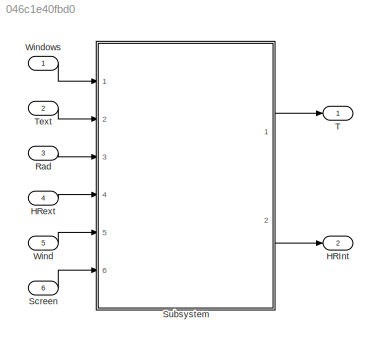
MODEL slx_046c1e40fbd0
KIND model
CONFIG AbsTol = auto
CONFIG EnableMultiTasking = off
CONFIG FixedStep = auto
CONFIG MaxStep = auto
CONFIG MinStep = auto
CONFIG RelTol = 1e-3
CONFIG SampleTimeConstraint = Unconstrained
CONFIG SolverName = VariableStepAuto
CONFIG StartTime = 0.0
CONFIG StopTime = 8
WORKSPACE source: mxarray member
WORKSPACE params: climate_p (value not decoded)
BLOCK [Outport] HRInt
  Port = 2
BLOCK [Inport] HRext
  Port = 4
BLOCK [Inport] Rad
  Port = 3
BLOCK [Inport] Screen
  Port = 6
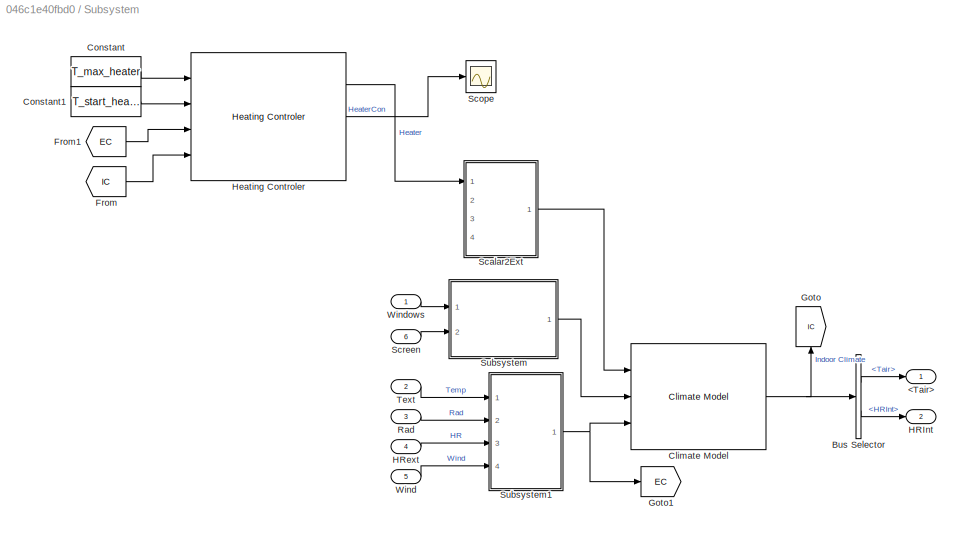
BLOCK [SubSystem] Subsystem
  Ports = [6, 2]
  RequestExecContextInheritance = off
BLOCK [Outport] Subsystem/<Tair>
BLOCK [BusSelector] Subsystem/Bus Selector
  OutputSignals = Temp.Tair,Gas.HRInt
  Ports = [1, 2]
BLOCK [Reference] Subsystem/Climate Model  REF=HORTISIM/Climate/Models/Climate Model
  Ports = [3, 1]
  SourceBlock = HORTISIM/Climate/Models/Climate Model
  SourceProductName = Horti Simulator
BLOCK [Constant] Subsystem/Constant
  Value = T_max_heater
BLOCK [Constant] Subsystem/Constant1
  Value = T_start_heater
BLOCK [From] Subsystem/From
  GotoTag = IC
BLOCK [From] Subsystem/From1
  GotoTag = EC
BLOCK [Goto] Subsystem/Goto
  GotoTag = IC
  NameLocation = right
BLOCK [Goto] Subsystem/Goto1
  GotoTag = EC
BLOCK [Outport] Subsystem/HRInt
  Port = 2
BLOCK [Inport] Subsystem/HRext
  Port = 4
BLOCK [Reference] Subsystem/Heating Controler  REF=HORTISIM/Climate/Controls/Heating Controler
  NameLocation = top
  Ports = [4, 3]
  SourceBlock = HORTISIM/Climate/Controls/Heating Controler
  SourceProductName = Horti Simulator
BLOCK [Inport] Subsystem/Rad
  Port = 3
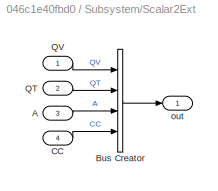
BLOCK [SubSystem] Subsystem/Scalar2Ext
  Ports = [4, 1]
  RequestExecContextInheritance = off
BLOCK [Inport] Subsystem/Scalar2Ext/A
  Port = 3
BLOCK [BusCreator] Subsystem/Scalar2Ext/Bus Creator
  DisplayOption = bar
  InheritFromInputs = on
  Inputs = 4
  Ports = [4, 1]
BLOCK [Inport] Subsystem/Scalar2Ext/CC
  Port = 4
BLOCK [Inport] Subsystem/Scalar2Ext/QT
  Port = 2
BLOCK [Inport] Subsystem/Scalar2Ext/QV
BLOCK [Outport] Subsystem/Scalar2Ext/out
BLOCK [Scope] Subsystem/Scope
  Floating = off
  NumInputPorts = 1
  Ports = [1]
  ScopeSpecificationString = Simulink.scopes.TimeScopeBlockCfg('CurrentConfiguration', extmgr.ConfigurationSet(extmgr.Configuration('Core','General UI',true),extmgr.Configuration('Core','Source UI',true),extmgr.Configuration('Sources','WiredSimulink',true),extmgr.Configuration('Visuals','Time Domain',true,'SerializedDisplays',{struct('MinYLimReal','-125000.00000','MaxYLimReal','1125000.00000','YLabelReal','','MinYLimMag','   ...<+1426ch>
BLOCK [Inport] Subsystem/Screen
  Port = 6
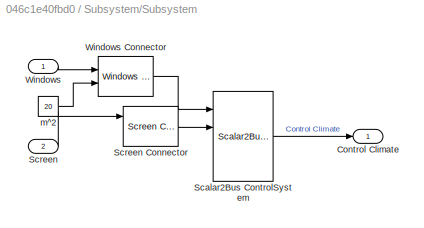
BLOCK [SubSystem] Subsystem/Subsystem
  Ports = [2, 1]
  RequestExecContextInheritance = off
BLOCK [Outport] Subsystem/Subsystem/Control Climate
BLOCK [Reference] Subsystem/Subsystem/Scalar2Bus ControlSystem  REF=HORTISIM/Other 
Functions/Scalar2Bus 
ControlSystem
  Ports = [4, 1]
  SourceBlock = HORTISIM/Other \nFunctions/Scalar2Bus \nControlSystem
  SourceProductName = Horti Simulator
  SourceType = SubSystem
BLOCK [Inport] Subsystem/Subsystem/Screen
  Port = 2
BLOCK [Reference] Subsystem/Subsystem/Screen Connector  REF=HORTISIM/Other 
Functions/Screen
Connector
  Ports = [3, 1]
  SourceBlock = HORTISIM/Other \nFunctions/Screen\nConnector
  SourceProductName = Horti Simulator
  SourceType = SubSystem
BLOCK [Inport] Subsystem/Subsystem/Windows
BLOCK [Reference] Subsystem/Subsystem/Windows Connector  REF=HORTISIM/Other 
Functions/Windows
Connector
  Ports = [2, 1]
  SourceBlock = HORTISIM/Other \nFunctions/Windows\nConnector
  SourceProductName = Horti Simulator
  SourceType = SubSystem
BLOCK [Constant] Subsystem/Subsystem/m^2
  Value = 20
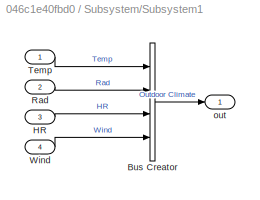
BLOCK [SubSystem] Subsystem/Subsystem1
  Ports = [4, 1]
  RequestExecContextInheritance = off
BLOCK [BusCreator] Subsystem/Subsystem1/Bus Creator
  DisplayOption = bar
  InheritFromInputs = on
  Inputs = 4
  Ports = [4, 1]
BLOCK [Inport] Subsystem/Subsystem1/HR
  Port = 3
BLOCK [Inport] Subsystem/Subsystem1/Rad
  Port = 2
BLOCK [Inport] Subsystem/Subsystem1/Temp
BLOCK [Inport] Subsystem/Subsystem1/Wind
  Port = 4
BLOCK [Outport] Subsystem/Subsystem1/out
BLOCK [Inport] Subsystem/Text
  Port = 2
BLOCK [Inport] Subsystem/Wind
  Port = 5
BLOCK [Inport] Subsystem/Windows
BLOCK [Outport] T
BLOCK [Inport] Text
  Port = 2
BLOCK [Inport] Wind
  Port = 5
BLOCK [Inport] Windows
LINE HRext:1 -> Subsystem:4
LINE Rad:1 -> Subsystem:3
LINE Screen:1 -> Subsystem:6
LINE Subsystem/Bus Selector:1 -> Subsystem/<Tair>:1
LINE Subsystem/Bus Selector:2 -> Subsystem/HRInt:1
NET Subsystem/Climate Model:1 -> Subsystem/Bus Selector:1, Subsystem/Goto:1
LINE Subsystem/Constant1:1 -> Subsystem/Heating Controler:2
LINE Subsystem/Constant:1 -> Subsystem/Heating Controler:1
LINE Subsystem/From1:1 -> Subsystem/Heating Controler:3
LINE Subsystem/From:1 -> Subsystem/Heating Controler:4
LINE Subsystem/HRext:1 -> Subsystem/Subsystem1:3
LINE Subsystem/Heating Controler:1 -> Subsystem/Scalar2Ext:1
LINE Subsystem/Heating Controler:2 -> Subsystem/Scope:1
LINE Subsystem/Rad:1 -> Subsystem/Subsystem1:2
LINE Subsystem/Scalar2Ext/A:1 -> Subsystem/Scalar2Ext/Bus Creator:3
LINE Subsystem/Scalar2Ext/Bus Creator:1 -> Subsystem/Scalar2Ext/out:1
LINE Subsystem/Scalar2Ext/CC:1 -> Subsystem/Scalar2Ext/Bus Creator:4
LINE Subsystem/Scalar2Ext/QT:1 -> Subsystem/Scalar2Ext/Bus Creator:2
LINE Subsystem/Scalar2Ext/QV:1 -> Subsystem/Scalar2Ext/Bus Creator:1
LINE Subsystem/Scalar2Ext:1 -> Subsystem/Climate Model:1
LINE Subsystem/Screen:1 -> Subsystem/Subsystem:2
LINE Subsystem/Subsystem/Scalar2Bus ControlSystem:1 -> Subsystem/Subsystem/Control Climate:1
LINE Subsystem/Subsystem/Screen Connector:1 -> Subsystem/Subsystem/Scalar2Bus ControlSystem:2
LINE Subsystem/Subsystem/Screen:1 -> Subsystem/Subsystem/Screen Connector:1
LINE Subsystem/Subsystem/Windows Connector:1 -> Subsystem/Subsystem/Scalar2Bus ControlSystem:1
LINE Subsystem/Subsystem/Windows:1 -> Subsystem/Subsystem/Windows Connector:1
LINE Subsystem/Subsystem/m^2:1 -> Subsystem/Subsystem/Windows Connector:2
LINE Subsystem/Subsystem1/Bus Creator:1 -> Subsystem/Subsystem1/out:1
LINE Subsystem/Subsystem1/HR:1 -> Subsystem/Subsystem1/Bus Creator:3
LINE Subsystem/Subsystem1/Rad:1 -> Subsystem/Subsystem1/Bus Creator:2
LINE Subsystem/Subsystem1/Temp:1 -> Subsystem/Subsystem1/Bus Creator:1
LINE Subsystem/Subsystem1/Wind:1 -> Subsystem/Subsystem1/Bus Creator:4
NET Subsystem/Subsystem1:1 -> Subsystem/Climate Model:3, Subsystem/Goto1:1
LINE Subsystem/Subsystem:1 -> Subsystem/Climate Model:2
LINE Subsystem/Text:1 -> Subsystem/Subsystem1:1
LINE Subsystem/Wind:1 -> Subsystem/Subsystem1:4
LINE Subsystem/Windows:1 -> Subsystem/Subsystem:1
LINE Subsystem:1 -> T:1
LINE Subsystem:2 -> HRInt:1
LINE Text:1 -> Subsystem:2
LINE Wind:1 -> Subsystem:5
LINE Windows:1 -> Subsystem:1
note: NET lines group one-source signal fan-out (src -> all destinations, sorted); 1:1 wires keep LINE
